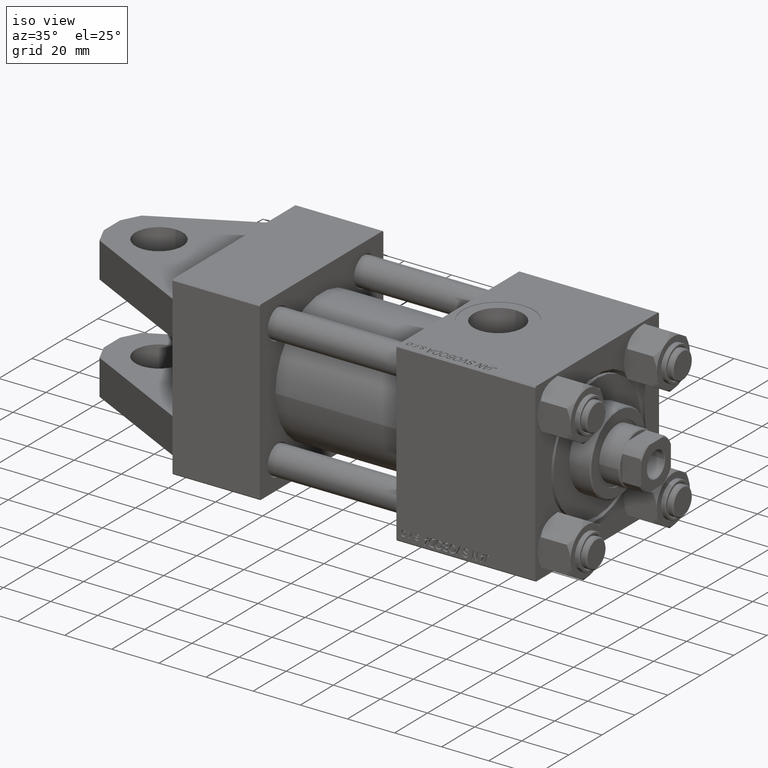
[diagram: clean part render]
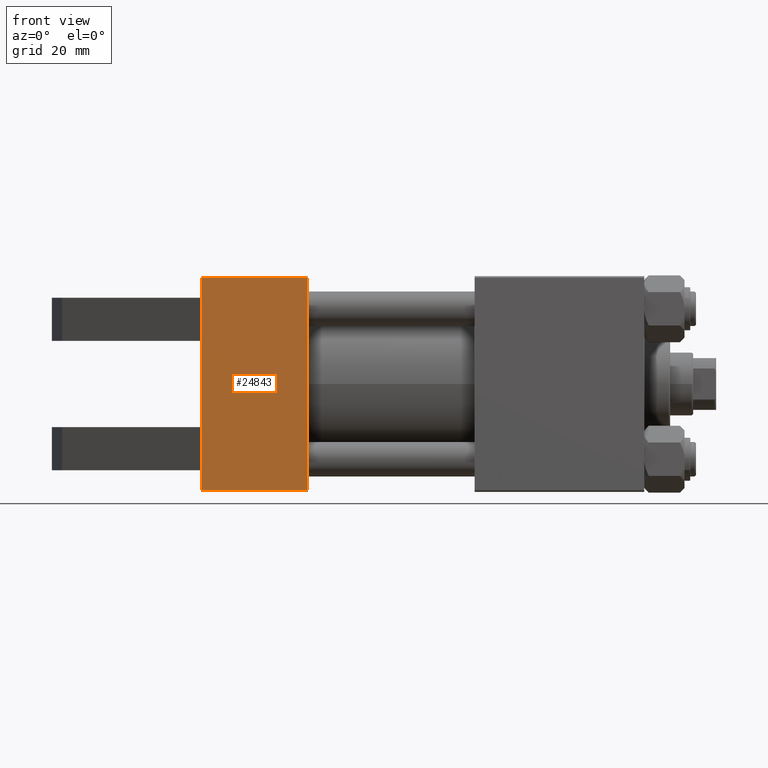
[diagram: tour spotlight — one face highlighted and labeled with its STEP entity id]
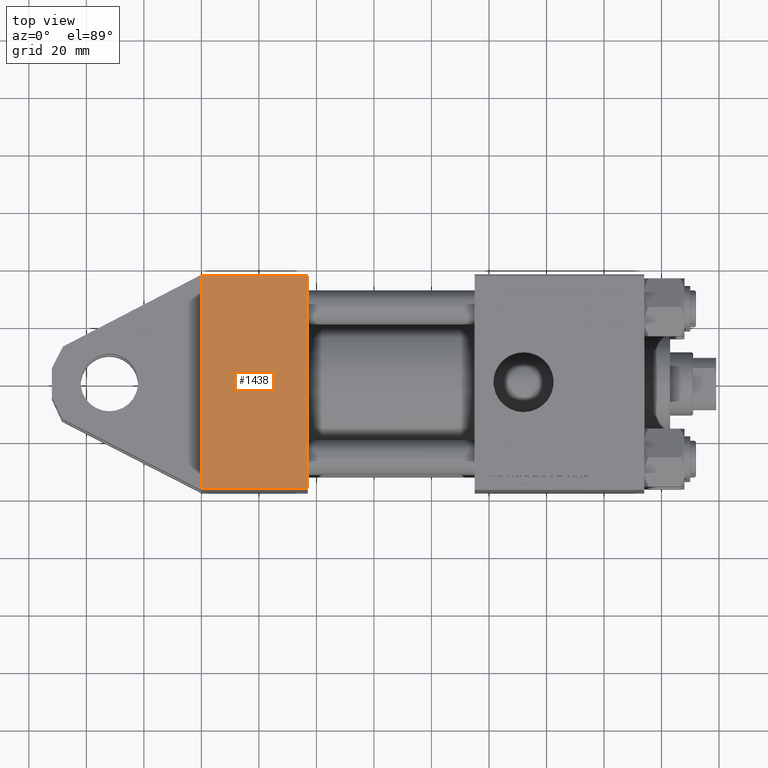
[diagram: tour spotlight — one face highlighted and labeled with its STEP entity id]
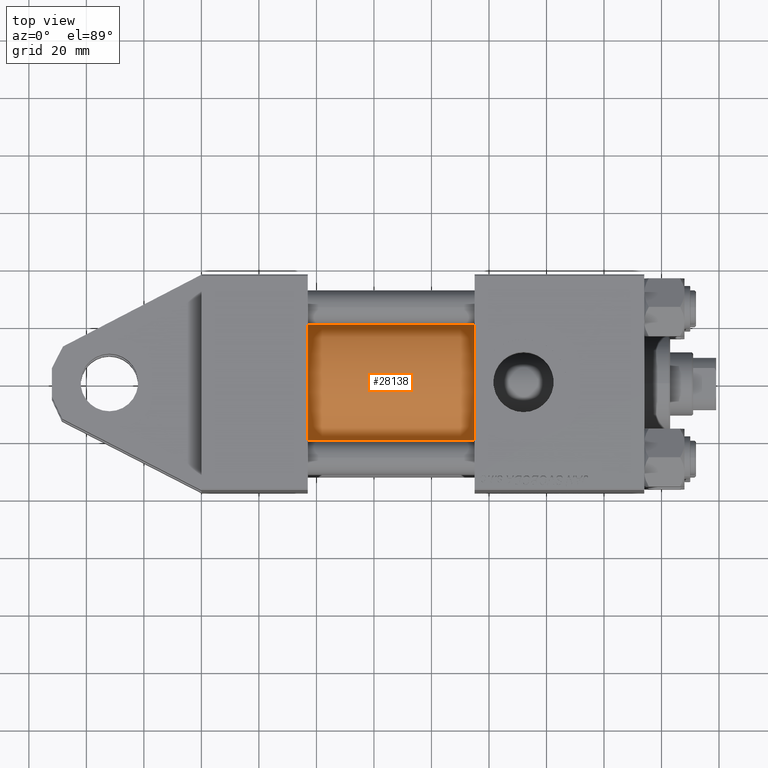
[diagram: tour spotlight — one face highlighted and labeled with its STEP entity id]
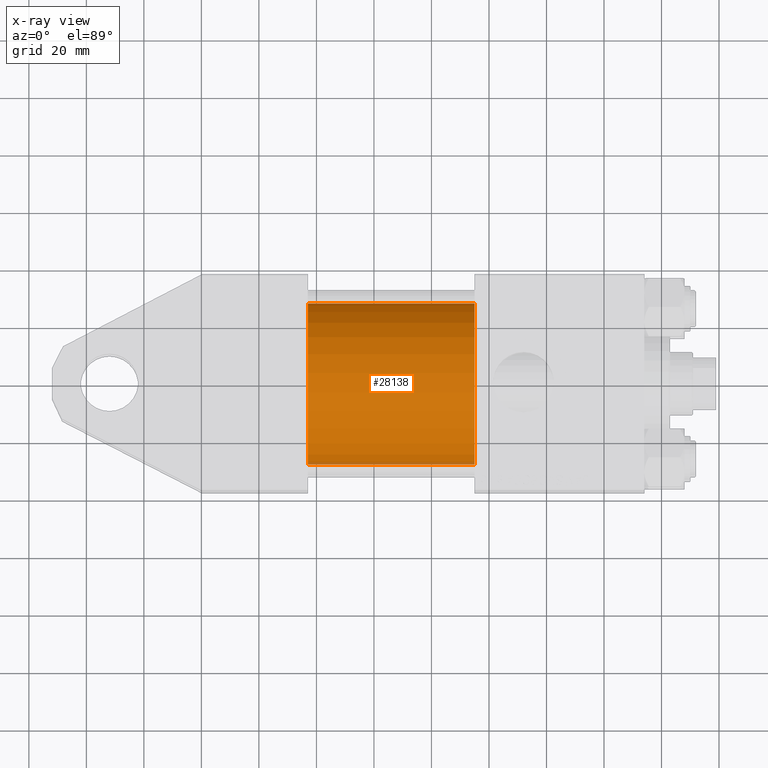
[diagram: x-ray of the same camera — body ghosted, this tour face saturated]
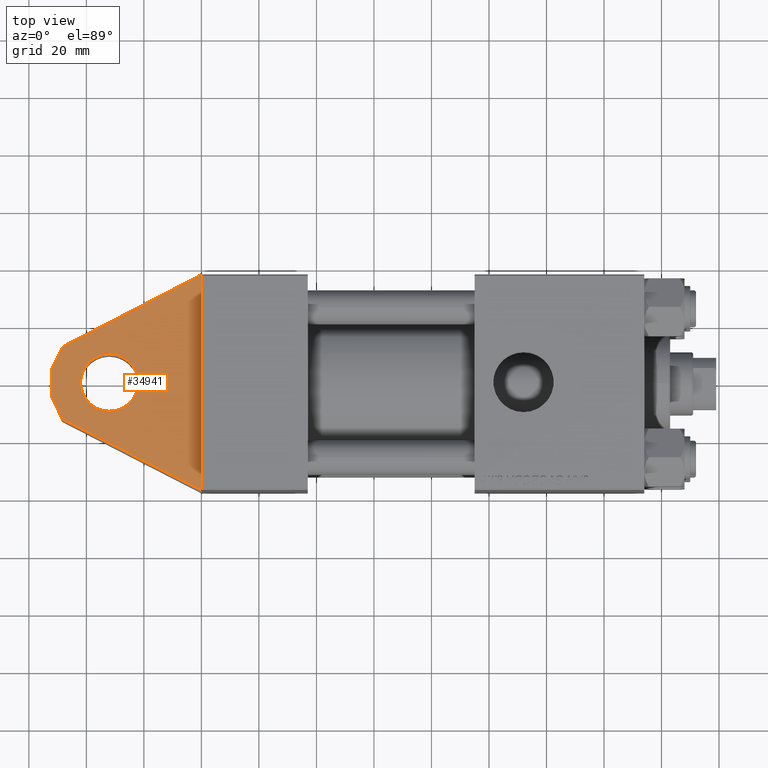
[diagram: tour spotlight — one face highlighted and labeled with its STEP entity id]
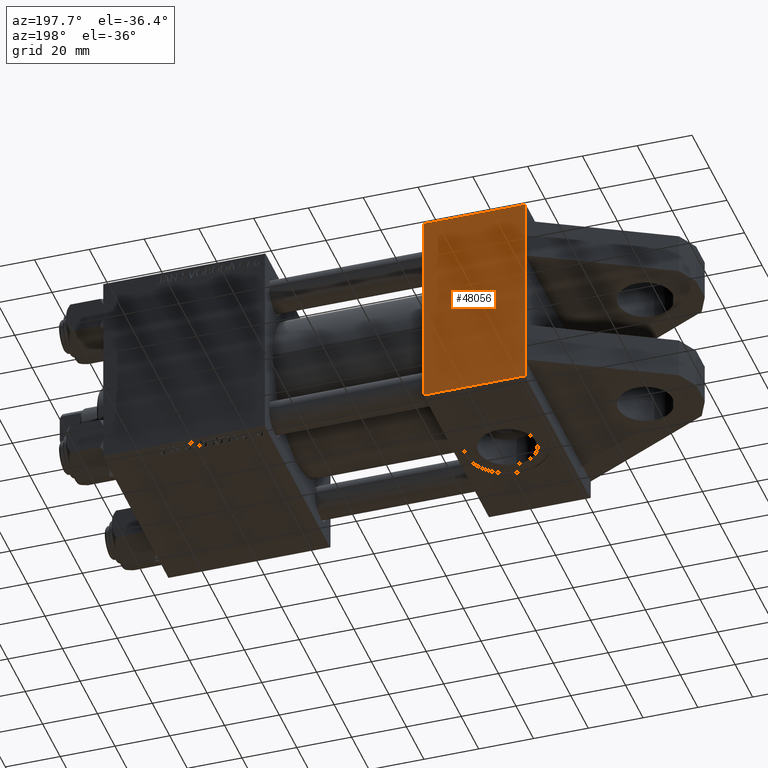
[diagram: tour spotlight — one face highlighted and labeled with its STEP entity id]
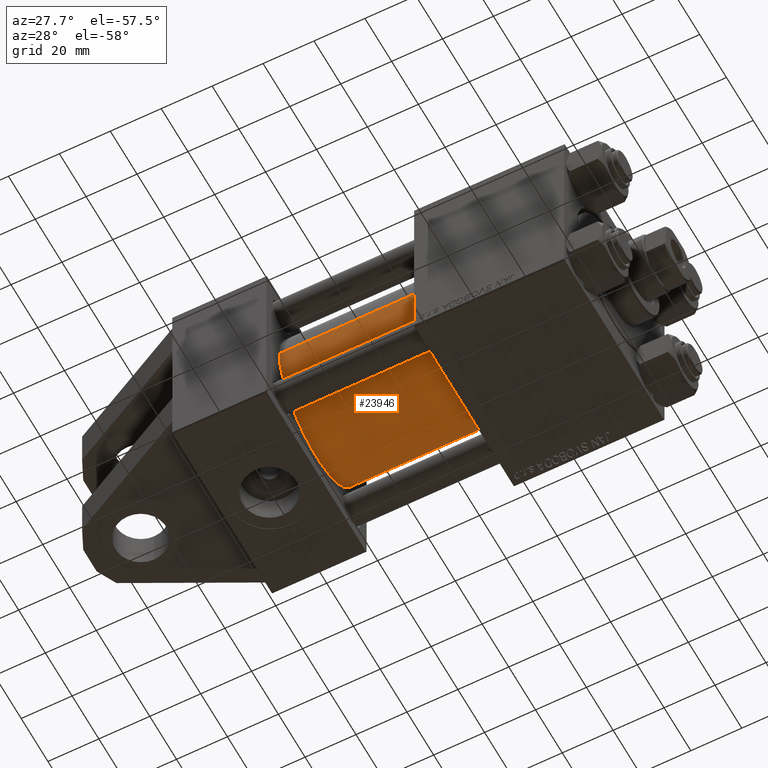
[diagram: tour spotlight — one face highlighted and labeled with its STEP entity id]
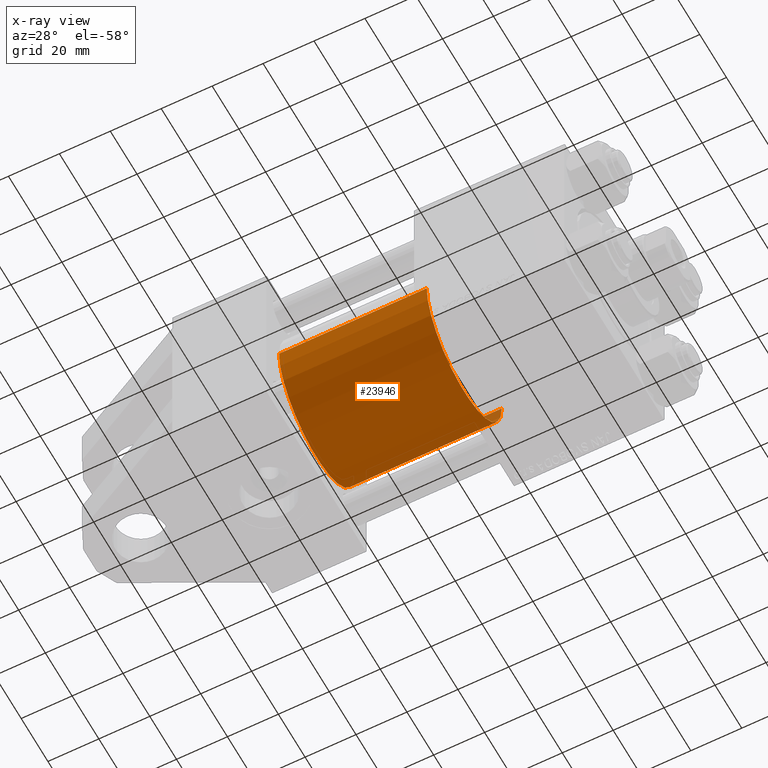
[diagram: x-ray of the same camera — body ghosted, this tour face saturated]
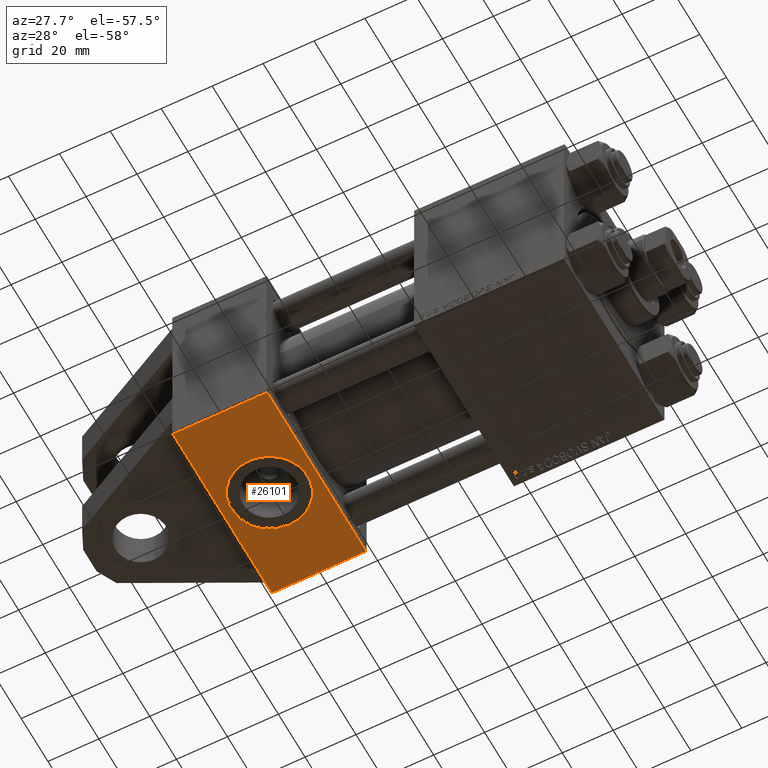
[diagram: tour spotlight — one face highlighted and labeled with its STEP entity id]
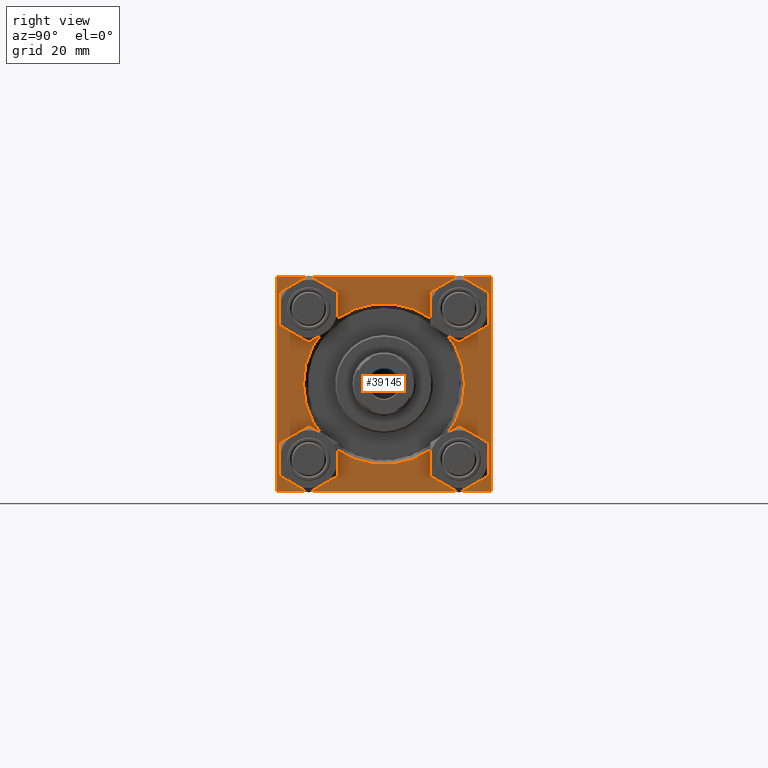
[diagram: tour spotlight — one face highlighted and labeled with its STEP entity id]
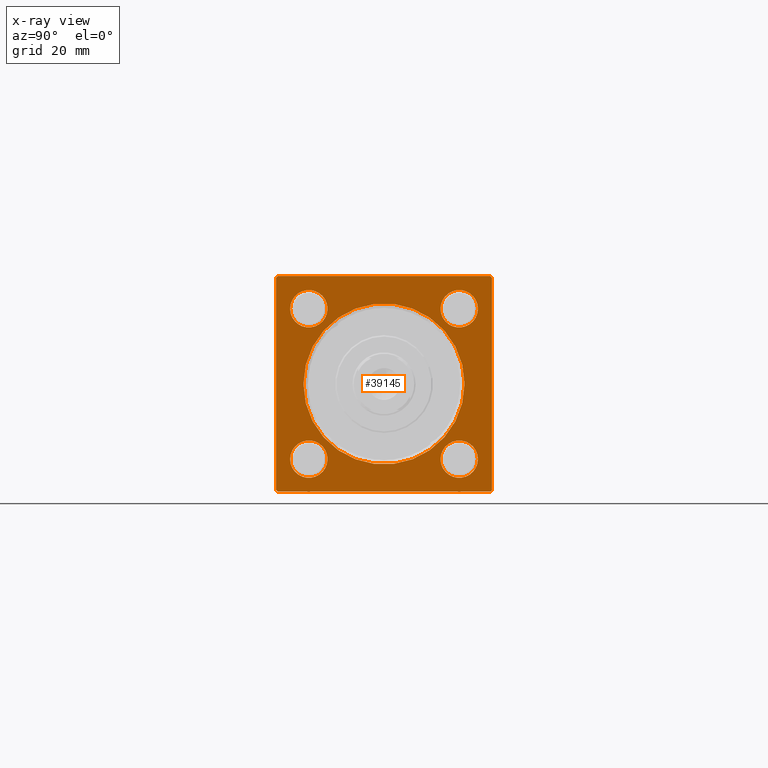
[diagram: x-ray of the same camera — body ghosted, this tour face saturated]
A machine part: a face-by-face anatomy tour. The part has 1129 B-rep faces; the first image is the clean iso view, then the 8 largest visible faces are spotlighted one at a time (largest first), each with its STEP entity span.

Face 1 — front view, entity #24843. In plain terms, the highlighted planar face has unit normal (0, -1, -0).
Definition (entity closure, byte-faithful):
#863 = CARTESIAN_POINT ( 'NONE',  ( 0.000000000000000000, -30.00000000000000000, -37.50000000000000711 ) ) ;
#1143 = CARTESIAN_POINT ( 'NONE',  ( 0.000000000000000000, 37.49999999999999289, -37.50000000000000000 ) ) ;
#1312 = VECTOR ( 'NONE', #40121, 1000.000000000000000 ) ;
#1411 = ORIENTED_EDGE ( 'NONE', *, *, #10355, .F. ) ;
#2431 = CARTESIAN_POINT ( 'NONE',  ( 0.000000000000000000, -15.00000000000000000, -37.50000000000000711 ) ) ;
#4127 = ORIENTED_EDGE ( 'NONE', *, *, #11592, .T. ) ;
#4802 = CARTESIAN_POINT ( 'NONE',  ( 0.000000000000000000, 30.00000000000000000, -37.50000000000000711 ) ) ;
#4807 = ORIENTED_EDGE ( 'NONE', *, *, #30528, .T. ) ;
#5144 = VECTOR ( 'NONE', #26534, 1000.000000000000000 ) ;
#6107 = ORIENTED_EDGE ( 'NONE', *, *, #16172, .F. ) ;
#6682 = CARTESIAN_POINT ( 'NONE',  ( 0.000000000000000000, 37.49999999999999289, -37.50000000000000000 ) ) ;
#6863 = VECTOR ( 'NONE', #34172, 1000.000000000000000 ) ;
#7053 = LINE ( 'NONE', #15320, #6863 ) ;
#7837 = VERTEX_POINT ( 'NONE', #2431 ) ;
#8394 = CARTESIAN_POINT ( 'NONE',  ( 0.000000000000000000, 36.99999999999997868, -37.50000000000000000 ) ) ;
#9418 = DIRECTION ( 'NONE',  ( 0.000000000000000000, -1.000000000000000000, -9.251858538542972814E-17 ) ) ;
#9711 = LINE ( 'NONE', #6682, #1312 ) ;
#10355 = EDGE_CURVE ( 'NONE', #34540, #11801, #43854, .T. ) ;
#11286 = EDGE_CURVE ( 'NONE', #11801, #28522, #33817, .T. ) ;
#11559 = CARTESIAN_POINT ( 'NONE',  ( 37.00000000000000000, 37.49999999999999289, -37.50000000000000000 ) ) ;
#11592 = EDGE_CURVE ( 'NONE', #13942, #7837, #33450, .T. ) ;
#11801 = VERTEX_POINT ( 'NONE', #4802 ) ;
#13942 = VERTEX_POINT ( 'NONE', #863 ) ;
#14622 = EDGE_CURVE ( 'NONE', #28522, #7837, #7053, .T. ) ;
#15092 = DIRECTION ( 'NONE',  ( 0.000000000000000000, -1.000000000000000000, -9.251858538542972814E-17 ) ) ;
#15320 = CARTESIAN_POINT ( 'NONE',  ( 0.000000000000000000, 37.49999999999999289, -37.50000000000000000 ) ) ;
#15424 = EDGE_LOOP ( 'NONE', ( #1411, #24518, #49621, #4807, #6107, #4127, #37955, #20298 ) ) ;
#16147 = CARTESIAN_POINT ( 'NONE',  ( 0.000000000000000000, -37.00000000000002132, -37.50000000000000711 ) ) ;
#16172 = EDGE_CURVE ( 'NONE', #13942, #17626, #9711, .T. ) ;
#17626 = VERTEX_POINT ( 'NONE', #16147 ) ;
#18037 = VERTEX_POINT ( 'NONE', #23052 ) ;
#18089 = CARTESIAN_POINT ( 'NONE',  ( 37.00000000000000000, 36.99999999999997868, -37.50000000000000000 ) ) ;
#19339 = PLANE ( 'NONE',  #43993 ) ;
#20298 = ORIENTED_EDGE ( 'NONE', *, *, #11286, .F. ) ;
#20391 = LINE ( 'NONE', #43271, #41896 ) ;
#21917 = CARTESIAN_POINT ( 'NONE',  ( 37.00000000000000000, -37.00000000000002132, -37.50000000000000711 ) ) ;
#23052 = CARTESIAN_POINT ( 'NONE',  ( 37.00000000000000000, 36.99999999999997868, -37.50000000000000000 ) ) ;
#23596 = CARTESIAN_POINT ( 'NONE',  ( 0.000000000000000000, 15.00000000000000000, -37.50000000000000000 ) ) ;
#24518 = ORIENTED_EDGE ( 'NONE', *, *, #30600, .T. ) ;
#24843 = ADVANCED_FACE ( 'NONE', ( #34921 ), #19339, .T. ) ;
#26131 = DIRECTION ( 'NONE',  ( 0.000000000000000000, 1.000000000000000000, 9.251858538542972814E-17 ) ) ;
#26534 = DIRECTION ( 'NONE',  ( -0.000000000000000000, -1.000000000000000000, -0.000000000000000000 ) ) ;
#27137 = DIRECTION ( 'NONE',  ( 0.000000000000000000, 9.251858538542972814E-17, -1.000000000000000000 ) ) ;
#28522 = VERTEX_POINT ( 'NONE', #23596 ) ;
#29668 = LINE ( 'NONE', #37713, #44507 ) ;
#30373 = VERTEX_POINT ( 'NONE', #21917 ) ;
#30528 = EDGE_CURVE ( 'NONE', #30373, #17626, #20391, .T. ) ;
#30600 = EDGE_CURVE ( 'NONE', #34540, #18037, #40228, .T. ) ;
#33199 = CARTESIAN_POINT ( 'NONE',  ( 0.000000000000000000, -30.00000000000000000, -37.50000000000000711 ) ) ;
#33415 = DIRECTION ( 'NONE',  ( 1.000000000000000000, 0.000000000000000000, 0.000000000000000000 ) ) ;
#33450 = LINE ( 'NONE', #33199, #41256 ) ;
#33817 = LINE ( 'NONE', #49177, #5144 ) ;
#34172 = DIRECTION ( 'NONE',  ( 0.000000000000000000, -1.000000000000000000, -9.251858538542972814E-17 ) ) ;
#34540 = VERTEX_POINT ( 'NONE', #8394 ) ;
#34921 = FACE_OUTER_BOUND ( 'NONE', #15424, .T. ) ;
#37713 = CARTESIAN_POINT ( 'NONE',  ( 37.00000000000000000, 37.49999999999999289, -37.50000000000000000 ) ) ;
#37955 = ORIENTED_EDGE ( 'NONE', *, *, #14622, .F. ) ;
#40121 = DIRECTION ( 'NONE',  ( 0.000000000000000000, -1.000000000000000000, -9.251858538542972814E-17 ) ) ;
#40228 = LINE ( 'NONE', #18089, #49108 ) ;
#40730 = EDGE_CURVE ( 'NONE', #18037, #30373, #29668, .T. ) ;
#40995 = DIRECTION ( 'NONE',  ( -0.000000000000000000, 1.000000000000000000, -0.000000000000000000 ) ) ;
#41256 = VECTOR ( 'NONE', #40995, 1000.000000000000000 ) ;
#41896 = VECTOR ( 'NONE', #42779, 1000.000000000000000 ) ;
#42779 = DIRECTION ( 'NONE',  ( -1.000000000000000000, 0.000000000000000000, 0.000000000000000000 ) ) ;
#43271 = CARTESIAN_POINT ( 'NONE',  ( 0.000000000000000000, -37.00000000000002132, -37.50000000000000711 ) ) ;
#43854 = LINE ( 'NONE', #1143, #49271 ) ;
#43993 = AXIS2_PLACEMENT_3D ( 'NONE', #11559, #27137, #26131 ) ;
#44507 = VECTOR ( 'NONE', #15092, 1000.000000000000000 ) ;
#49108 = VECTOR ( 'NONE', #33415, 1000.000000000000000 ) ;
#49177 = CARTESIAN_POINT ( 'NONE',  ( 0.000000000000000000, 30.00000000000000000, -37.50000000000000711 ) ) ;
#49271 = VECTOR ( 'NONE', #9418, 1000.000000000000000 ) ;
#49621 = ORIENTED_EDGE ( 'NONE', *, *, #40730, .T. ) ;

Face 2 — top view, entity #1438. In plain terms, the highlighted planar face has unit normal (0, 0, -1).
Definition (entity closure, byte-faithful):
#1292 = VERTEX_POINT ( 'NONE', #48486 ) ;
#1438 = ADVANCED_FACE ( 'NONE', ( #36154 ), #24347, .F. ) ;
#4654 = VECTOR ( 'NONE', #45205, 1000.000000000000000 ) ;
#5269 = DIRECTION ( 'NONE',  ( -0.000000000000000000, 1.000000000000000000, 9.251858538542971581E-17 ) ) ;
#5527 = CARTESIAN_POINT ( 'NONE',  ( 37.00000000000000000, -37.50000000000000711, 37.49999999999999289 ) ) ;
#5583 = ORIENTED_EDGE ( 'NONE', *, *, #13267, .T. ) ;
#7891 = LINE ( 'NONE', #45591, #48600 ) ;
#8174 = CARTESIAN_POINT ( 'NONE',  ( 37.00000000000000000, -37.50000000000000000, -37.00000000000003553 ) ) ;
#8354 = ORIENTED_EDGE ( 'NONE', *, *, #26259, .T. ) ;
#10614 = VERTEX_POINT ( 'NONE', #31965 ) ;
#11209 = VERTEX_POINT ( 'NONE', #16770 ) ;
#13264 = DIRECTION ( 'NONE',  ( 0.000000000000000000, 9.251858538542971581E-17, -1.000000000000000000 ) ) ;
#13267 = EDGE_CURVE ( 'NONE', #1292, #14230, #7891, .T. ) ;
#14037 = LINE ( 'NONE', #41439, #4654 ) ;
#14230 = VERTEX_POINT ( 'NONE', #48327 ) ;
#16464 = VECTOR ( 'NONE', #13264, 1000.000000000000000 ) ;
#16770 = CARTESIAN_POINT ( 'NONE',  ( 37.00000000000000000, -37.50000000000000711, 36.99999999999999289 ) ) ;
#20587 = DIRECTION ( 'NONE',  ( 0.000000000000000000, -9.251858538542971581E-17, 1.000000000000000000 ) ) ;
#20777 = EDGE_CURVE ( 'NONE', #11209, #1292, #14037, .T. ) ;
#21543 = CARTESIAN_POINT ( 'NONE',  ( 37.00000000000000000, -37.50000000000000711, 37.49999999999999289 ) ) ;
#21549 = VECTOR ( 'NONE', #43351, 1000.000000000000000 ) ;
#24347 = PLANE ( 'NONE',  #35482 ) ;
#26259 = EDGE_CURVE ( 'NONE', #14230, #10614, #28009, .T. ) ;
#28009 = LINE ( 'NONE', #8174, #21549 ) ;
#28034 = ORIENTED_EDGE ( 'NONE', *, *, #20777, .T. ) ;
#31965 = CARTESIAN_POINT ( 'NONE',  ( 37.00000000000000000, -37.50000000000000000, -37.00000000000003553 ) ) ;
#35482 = AXIS2_PLACEMENT_3D ( 'NONE', #5527, #5269, #20587 ) ;
#36154 = FACE_OUTER_BOUND ( 'NONE', #41789, .T. ) ;
#40147 = LINE ( 'NONE', #21543, #16464 ) ;
#41439 = CARTESIAN_POINT ( 'NONE',  ( 37.00000000000000000, -37.50000000000000711, 36.99999999999999289 ) ) ;
#41789 = EDGE_LOOP ( 'NONE', ( #5583, #8354, #45721, #28034 ) ) ;
#41815 = DIRECTION ( 'NONE',  ( 0.000000000000000000, 9.251858538542971581E-17, -1.000000000000000000 ) ) ;
#43351 = DIRECTION ( 'NONE',  ( 1.000000000000000000, 0.000000000000000000, 0.000000000000000000 ) ) ;
#45205 = DIRECTION ( 'NONE',  ( -1.000000000000000000, 0.000000000000000000, 0.000000000000000000 ) ) ;
#45591 = CARTESIAN_POINT ( 'NONE',  ( 0.000000000000000000, -37.50000000000000711, 37.49999999999999289 ) ) ;
#45721 = ORIENTED_EDGE ( 'NONE', *, *, #46490, .F. ) ;
#46490 = EDGE_CURVE ( 'NONE', #11209, #10614, #40147, .T. ) ;
#48327 = CARTESIAN_POINT ( 'NONE',  ( 0.000000000000000000, -37.50000000000000000, -37.00000000000003553 ) ) ;
#48486 = CARTESIAN_POINT ( 'NONE',  ( 0.000000000000000000, -37.50000000000000711, 36.99999999999999289 ) ) ;
#48600 = VECTOR ( 'NONE', #41815, 1000.000000000000000 ) ;

Face 3 — top view, entity #28138. An x-ray twin of the same camera follows (body ghosted, this face saturated) — the face is partly hidden behind the body. In plain terms, the highlighted cylindrical surface (partial cylindrical patch) has radius 28 mm, axis along (-1, -0, 0).
Definition (entity closure, byte-faithful):
#240 = DIRECTION ( 'NONE',  ( -1.000000000000000000, -0.000000000000000000, -0.000000000000000000 ) ) ;
#364 = AXIS2_PLACEMENT_3D ( 'NONE', #46187, #8901, #11757 ) ;
#861 = CIRCLE ( 'NONE', #26486, 28.00000000000000000 ) ;
#3767 = LINE ( 'NONE', #23827, #11391 ) ;
#4084 = CARTESIAN_POINT ( 'NONE',  ( 37.00000000000000000, -3.469446951953614189E-15, 28.00000000000000000 ) ) ;
#6607 = CARTESIAN_POINT ( 'NONE',  ( 95.00000000000000000, -3.469446951953614189E-15, 0.000000000000000000 ) ) ;
#7914 = VERTEX_POINT ( 'NONE', #29039 ) ;
#8901 = DIRECTION ( 'NONE',  ( 1.000000000000000000, -0.000000000000000000, 0.000000000000000000 ) ) ;
#11391 = VECTOR ( 'NONE', #240, 1000.000000000000000 ) ;
#11757 = DIRECTION ( 'NONE',  ( 0.000000000000000000, 0.000000000000000000, 1.000000000000000000 ) ) ;
#14010 = LINE ( 'NONE', #22547, #16367 ) ;
#14379 = FACE_OUTER_BOUND ( 'NONE', #36571, .T. ) ;
#15872 = ORIENTED_EDGE ( 'NONE', *, *, #27376, .F. ) ;
#16367 = VECTOR ( 'NONE', #48963, 1000.000000000000000 ) ;
#16786 = ORIENTED_EDGE ( 'NONE', *, *, #39658, .T. ) ;
#21057 = CARTESIAN_POINT ( 'NONE',  ( 95.00000000000000000, -4.043591434102586818E-17, -28.00000000000000000 ) ) ;
#22547 = CARTESIAN_POINT ( 'NONE',  ( 95.00000000000000000, -3.469446951953614189E-15, 28.00000000000000000 ) ) ;
#22763 = VERTEX_POINT ( 'NONE', #4084 ) ;
#23262 = VERTEX_POINT ( 'NONE', #21057 ) ;
#23827 = CARTESIAN_POINT ( 'NONE',  ( 95.00000000000000000, -4.043591434102586818E-17, -28.00000000000000000 ) ) ;
#24714 = DIRECTION ( 'NONE',  ( 0.000000000000000000, 0.000000000000000000, 1.000000000000000000 ) ) ;
#26486 = AXIS2_PLACEMENT_3D ( 'NONE', #35036, #31996, #47346 ) ;
#26936 = ORIENTED_EDGE ( 'NONE', *, *, #39487, .T. ) ;
#27376 = EDGE_CURVE ( 'NONE', #7914, #23262, #861, .T. ) ;
#28138 = ADVANCED_FACE ( 'NONE', ( #14379 ), #48592, .T. ) ;
#29039 = CARTESIAN_POINT ( 'NONE',  ( 95.00000000000000000, -3.469446951953614189E-15, 28.00000000000000000 ) ) ;
#31996 = DIRECTION ( 'NONE',  ( 1.000000000000000000, 0.000000000000000000, 0.000000000000000000 ) ) ;
#33577 = EDGE_CURVE ( 'NONE', #23262, #48293, #3767, .T. ) ;
#35036 = CARTESIAN_POINT ( 'NONE',  ( 95.00000000000000000, -3.469446951953614189E-15, 0.000000000000000000 ) ) ;
#35627 = CIRCLE ( 'NONE', #364, 28.00000000000000000 ) ;
#36465 = CARTESIAN_POINT ( 'NONE',  ( 37.00000000000000000, -4.043591434102586818E-17, -28.00000000000000000 ) ) ;
#36571 = EDGE_LOOP ( 'NONE', ( #44699, #15872, #26936, #16786 ) ) ;
#39487 = EDGE_CURVE ( 'NONE', #7914, #22763, #14010, .T. ) ;
#39658 = EDGE_CURVE ( 'NONE', #22763, #48293, #35627, .T. ) ;
#39984 = AXIS2_PLACEMENT_3D ( 'NONE', #6607, #40539, #24714 ) ;
#40539 = DIRECTION ( 'NONE',  ( -1.000000000000000000, -0.000000000000000000, -0.000000000000000000 ) ) ;
#44699 = ORIENTED_EDGE ( 'NONE', *, *, #33577, .F. ) ;
#46187 = CARTESIAN_POINT ( 'NONE',  ( 37.00000000000000000, -3.469446951953614189E-15, 0.000000000000000000 ) ) ;
#47346 = DIRECTION ( 'NONE',  ( 0.000000000000000000, 0.000000000000000000, -1.000000000000000000 ) ) ;
#48293 = VERTEX_POINT ( 'NONE', #36465 ) ;
#48592 = CYLINDRICAL_SURFACE ( 'NONE', #39984, 28.00000000000000000 ) ;
#48963 = DIRECTION ( 'NONE',  ( -1.000000000000000000, -0.000000000000000000, -0.000000000000000000 ) ) ;

Face 4 — top view, entity #34941. In plain terms, the highlighted planar face has unit normal (0, 0, 1).
Definition (entity closure, byte-faithful):
#863 = CARTESIAN_POINT ( 'NONE',  ( 0.000000000000000000, -30.00000000000000000, -37.50000000000000711 ) ) ;
#960 = LINE ( 'NONE', #31595, #40647 ) ;
#1131 = VECTOR ( 'NONE', #27397, 1000.000000000000000 ) ;
#2218 = FACE_BOUND ( 'NONE', #37603, .T. ) ;
#2311 = VERTEX_POINT ( 'NONE', #13049 ) ;
#3846 = CARTESIAN_POINT ( 'NONE',  ( -48.15077811301358679, -30.00000000000000000, 12.49989272354909353 ) ) ;
#5826 = EDGE_LOOP ( 'NONE', ( #38721, #37821, #6899, #44652, #10284, #33573 ) ) ;
#6836 = CARTESIAN_POINT ( 'NONE',  ( -32.00000000000000000, -30.00000000000000000, -6.938893903907228378E-15 ) ) ;
#6839 = DIRECTION ( 'NONE',  ( 0.4566099510066921607, 0.000000000000000000, 0.8896669897448518105 ) ) ;
#6899 = ORIENTED_EDGE ( 'NONE', *, *, #8228, .F. ) ;
#7936 = VECTOR ( 'NONE', #6839, 1000.000000000000000 ) ;
#8228 = EDGE_CURVE ( 'NONE', #13514, #29162, #48864, .T. ) ;
#10284 = ORIENTED_EDGE ( 'NONE', *, *, #37841, .F. ) ;
#10777 = EDGE_CURVE ( 'NONE', #13942, #13514, #39700, .T. ) ;
#13049 = CARTESIAN_POINT ( 'NONE',  ( -32.00000000000000000, -30.00000000000000000, -10.00000000000000711 ) ) ;
#13458 = DIRECTION ( 'NONE',  ( 0.000000000000000000, 0.000000000000000000, -1.000000000000000000 ) ) ;
#13514 = VERTEX_POINT ( 'NONE', #39898 ) ;
#13942 = VERTEX_POINT ( 'NONE', #863 ) ;
#15117 = CARTESIAN_POINT ( 'NONE',  ( -52.00000000000000711, -30.00000000000000000, 4.999999999999992895 ) ) ;
#15797 = DIRECTION ( 'NONE',  ( 0.000000000000000000, 0.000000000000000000, 1.000000000000000000 ) ) ;
#16468 = AXIS2_PLACEMENT_3D ( 'NONE', #6836, #41258, #37487 ) ;
#16532 = DIRECTION ( 'NONE',  ( 0.000000000000000000, 0.000000000000000000, 1.000000000000000000 ) ) ;
#17136 = EDGE_CURVE ( 'NONE', #29162, #39643, #960, .T. ) ;
#17255 = CIRCLE ( 'NONE', #22056, 10.00000000000000000 ) ;
#19316 = DIRECTION ( 'NONE',  ( -0.000000000000000000, 1.000000000000000000, -0.000000000000000000 ) ) ;
#21905 = CARTESIAN_POINT ( 'NONE',  ( -48.15077811301358679, -30.00000000000000000, 12.49989272354909353 ) ) ;
#22056 = AXIS2_PLACEMENT_3D ( 'NONE', #31372, #19316, #15797 ) ;
#22195 = CARTESIAN_POINT ( 'NONE',  ( -52.00000000000000711, -30.00000000000000000, -5.000000000000007105 ) ) ;
#26633 = EDGE_CURVE ( 'NONE', #39643, #46714, #45035, .T. ) ;
#27397 = DIRECTION ( 'NONE',  ( -0.8896669897448514774, 0.000000000000000000, 0.4566099510066927158 ) ) ;
#27646 = CARTESIAN_POINT ( 'NONE',  ( -48.43732805352595960, -30.00000000000000000, -12.64017464471899110 ) ) ;
#28444 = VECTOR ( 'NONE', #48120, 1000.000000000000114 ) ;
#28589 = FACE_OUTER_BOUND ( 'NONE', #5826, .T. ) ;
#28649 = CARTESIAN_POINT ( 'NONE',  ( -52.00000000000000711, -30.00000000000000000, -5.000000000000007105 ) ) ;
#29162 = VERTEX_POINT ( 'NONE', #28649 ) ;
#31372 = CARTESIAN_POINT ( 'NONE',  ( -32.00000000000000000, -30.00000000000000000, -6.938893903907228378E-15 ) ) ;
#31489 = CARTESIAN_POINT ( 'NONE',  ( -32.00000000000000000, -30.00000000000000000, 9.999999999999992895 ) ) ;
#31595 = CARTESIAN_POINT ( 'NONE',  ( -52.00000000000000711, -30.00000000000000000, -5.000000000000007105 ) ) ;
#32606 = CARTESIAN_POINT ( 'NONE',  ( 0.000000000000000000, -30.00000000000000000, 0.000000000000000000 ) ) ;
#32848 = DIRECTION ( 'NONE',  ( 0.000000000000000000, -1.000000000000000000, 0.000000000000000000 ) ) ;
#33030 = CARTESIAN_POINT ( 'NONE',  ( 0.000000000000000000, -30.00000000000000000, 37.49999999999999289 ) ) ;
#33573 = ORIENTED_EDGE ( 'NONE', *, *, #44156, .F. ) ;
#34869 = ORIENTED_EDGE ( 'NONE', *, *, #42461, .T. ) ;
#34941 = ADVANCED_FACE ( 'NONE', ( #2218, #28589 ), #43434, .T. ) ;
#35332 = CARTESIAN_POINT ( 'NONE',  ( 0.000000000000000000, -30.00000000000001421, 37.49999999999999289 ) ) ;
#37487 = DIRECTION ( 'NONE',  ( 0.000000000000000000, 0.000000000000000000, 1.000000000000000000 ) ) ;
#37603 = EDGE_LOOP ( 'NONE', ( #34869, #38997 ) ) ;
#37821 = ORIENTED_EDGE ( 'NONE', *, *, #17136, .F. ) ;
#37841 = EDGE_CURVE ( 'NONE', #43433, #13942, #43881, .T. ) ;
#38151 = CIRCLE ( 'NONE', #16468, 10.00000000000000000 ) ;
#38185 = VECTOR ( 'NONE', #46548, 1000.000000000000114 ) ;
#38721 = ORIENTED_EDGE ( 'NONE', *, *, #26633, .F. ) ;
#38997 = ORIENTED_EDGE ( 'NONE', *, *, #46424, .T. ) ;
#39643 = VERTEX_POINT ( 'NONE', #43585 ) ;
#39700 = LINE ( 'NONE', #27646, #1131 ) ;
#39898 = CARTESIAN_POINT ( 'NONE',  ( -48.43732805352595960, -30.00000000000000000, -12.64017464471899110 ) ) ;
#40647 = VECTOR ( 'NONE', #42926, 1000.000000000000000 ) ;
#41258 = DIRECTION ( 'NONE',  ( -0.000000000000000000, 1.000000000000000000, -0.000000000000000000 ) ) ;
#42461 = EDGE_CURVE ( 'NONE', #45962, #2311, #38151, .T. ) ;
#42926 = DIRECTION ( 'NONE',  ( 0.000000000000000000, 0.000000000000000000, 1.000000000000000000 ) ) ;
#43433 = VERTEX_POINT ( 'NONE', #35332 ) ;
#43434 = PLANE ( 'NONE',  #46732 ) ;
#43585 = CARTESIAN_POINT ( 'NONE',  ( -52.00000000000000711, -30.00000000000000000, 4.999999999999992895 ) ) ;
#43881 = LINE ( 'NONE', #33030, #48452 ) ;
#44156 = EDGE_CURVE ( 'NONE', #46714, #43433, #46300, .T. ) ;
#44652 = ORIENTED_EDGE ( 'NONE', *, *, #10777, .F. ) ;
#45035 = LINE ( 'NONE', #15117, #7936 ) ;
#45962 = VERTEX_POINT ( 'NONE', #31489 ) ;
#46300 = LINE ( 'NONE', #3846, #38185 ) ;
#46424 = EDGE_CURVE ( 'NONE', #2311, #45962, #17255, .T. ) ;
#46548 = DIRECTION ( 'NONE',  ( 0.8875055616531780656, 0.000000000000000000, 0.4607970030660757943 ) ) ;
#46714 = VERTEX_POINT ( 'NONE', #21905 ) ;
#46732 = AXIS2_PLACEMENT_3D ( 'NONE', #32606, #32848, #16532 ) ;
#48120 = DIRECTION ( 'NONE',  ( -0.4226182617406929465, 0.000000000000000000, 0.9063077870366529343 ) ) ;
#48452 = VECTOR ( 'NONE', #13458, 1000.000000000000000 ) ;
#48864 = LINE ( 'NONE', #22195, #28444 ) ;

Face 5 — auxiliary view, entity #48056. In plain terms, the highlighted planar face has unit normal (0, -1, -0).
Definition (entity closure, byte-faithful):
#742 = VECTOR ( 'NONE', #17653, 1000.000000000000000 ) ;
#1481 = EDGE_CURVE ( 'NONE', #43433, #31553, #28357, .T. ) ;
#1553 = VERTEX_POINT ( 'NONE', #31771 ) ;
#2824 = VECTOR ( 'NONE', #34579, 1000.000000000000000 ) ;
#2863 = DIRECTION ( 'NONE',  ( -0.000000000000000000, -1.000000000000000000, -0.000000000000000000 ) ) ;
#5060 = CARTESIAN_POINT ( 'NONE',  ( 37.00000000000000000, 36.99999999999999289, 37.50000000000000000 ) ) ;
#5277 = ORIENTED_EDGE ( 'NONE', *, *, #13771, .T. ) ;
#5431 = LINE ( 'NONE', #28030, #47761 ) ;
#8379 = LINE ( 'NONE', #23699, #41333 ) ;
#10235 = CARTESIAN_POINT ( 'NONE',  ( 0.000000000000000000, 36.99999999999999289, 37.50000000000000000 ) ) ;
#12305 = DIRECTION ( 'NONE',  ( -0.000000000000000000, 1.000000000000000000, -0.000000000000000000 ) ) ;
#12918 = CARTESIAN_POINT ( 'NONE',  ( 0.000000000000000000, 36.99999999999999289, 37.50000000000000000 ) ) ;
#13070 = VECTOR ( 'NONE', #36772, 1000.000000000000000 ) ;
#13260 = EDGE_CURVE ( 'NONE', #43433, #39370, #8379, .T. ) ;
#13771 = EDGE_CURVE ( 'NONE', #48790, #31553, #5431, .T. ) ;
#14447 = ORIENTED_EDGE ( 'NONE', *, *, #36580, .F. ) ;
#15815 = VECTOR ( 'NONE', #43842, 1000.000000000000000 ) ;
#17206 = ORIENTED_EDGE ( 'NONE', *, *, #42111, .T. ) ;
#17209 = DIRECTION ( 'NONE',  ( 0.000000000000000000, -1.000000000000000000, -9.251858538542971581E-17 ) ) ;
#17291 = AXIS2_PLACEMENT_3D ( 'NONE', #22683, #41550, #37016 ) ;
#17653 = DIRECTION ( 'NONE',  ( 0.000000000000000000, -1.000000000000000000, -9.251858538542971581E-17 ) ) ;
#18534 = EDGE_CURVE ( 'NONE', #29930, #37468, #37013, .T. ) ;
#18657 = EDGE_CURVE ( 'NONE', #25909, #48790, #37770, .T. ) ;
#21446 = LINE ( 'NONE', #44816, #13070 ) ;
#21800 = VECTOR ( 'NONE', #12305, 1000.000000000000000 ) ;
#22577 = EDGE_CURVE ( 'NONE', #37468, #25909, #44554, .T. ) ;
#22683 = CARTESIAN_POINT ( 'NONE',  ( 37.00000000000000000, 37.49999999999999289, 37.50000000000000000 ) ) ;
#23589 = ORIENTED_EDGE ( 'NONE', *, *, #13260, .T. ) ;
#23699 = CARTESIAN_POINT ( 'NONE',  ( 0.000000000000000000, 37.49999999999999289, 37.50000000000000000 ) ) ;
#25909 = VERTEX_POINT ( 'NONE', #33368 ) ;
#27029 = CARTESIAN_POINT ( 'NONE',  ( 0.000000000000000000, -15.00000000000000000, 37.49999999999999289 ) ) ;
#28030 = CARTESIAN_POINT ( 'NONE',  ( 0.000000000000000000, 37.49999999999999289, 37.50000000000000000 ) ) ;
#28051 = ORIENTED_EDGE ( 'NONE', *, *, #18657, .T. ) ;
#28357 = LINE ( 'NONE', #43962, #21800 ) ;
#29930 = VERTEX_POINT ( 'NONE', #5060 ) ;
#30436 = ORIENTED_EDGE ( 'NONE', *, *, #18534, .T. ) ;
#31306 = LINE ( 'NONE', #46645, #2824 ) ;
#31553 = VERTEX_POINT ( 'NONE', #27029 ) ;
#31771 = CARTESIAN_POINT ( 'NONE',  ( 37.00000000000000000, -37.00000000000000711, 37.49999999999999289 ) ) ;
#32373 = CARTESIAN_POINT ( 'NONE',  ( 0.000000000000000000, -37.00000000000000711, 37.49999999999999289 ) ) ;
#33246 = FACE_OUTER_BOUND ( 'NONE', #41291, .T. ) ;
#33368 = CARTESIAN_POINT ( 'NONE',  ( 0.000000000000000000, 30.00000000000000000, 37.50000000000000000 ) ) ;
#33491 = CARTESIAN_POINT ( 'NONE',  ( 0.000000000000000000, 30.00000000000000000, 37.49999999999999289 ) ) ;
#34579 = DIRECTION ( 'NONE',  ( 1.000000000000000000, 0.000000000000000000, 0.000000000000000000 ) ) ;
#35261 = DIRECTION ( 'NONE',  ( 0.000000000000000000, -1.000000000000000000, -9.251858538542971581E-17 ) ) ;
#35332 = CARTESIAN_POINT ( 'NONE',  ( 0.000000000000000000, -30.00000000000001421, 37.49999999999999289 ) ) ;
#36580 = EDGE_CURVE ( 'NONE', #29930, #1553, #21446, .T. ) ;
#36772 = DIRECTION ( 'NONE',  ( 0.000000000000000000, -1.000000000000000000, -9.251858538542971581E-17 ) ) ;
#37013 = LINE ( 'NONE', #12918, #15815 ) ;
#37016 = DIRECTION ( 'NONE',  ( 0.000000000000000000, 1.000000000000000000, 9.251858538542971581E-17 ) ) ;
#37468 = VERTEX_POINT ( 'NONE', #10235 ) ;
#37654 = ORIENTED_EDGE ( 'NONE', *, *, #1481, .F. ) ;
#37770 = LINE ( 'NONE', #33491, #40682 ) ;
#39370 = VERTEX_POINT ( 'NONE', #32373 ) ;
#40037 = CARTESIAN_POINT ( 'NONE',  ( 0.000000000000000000, 37.49999999999999289, 37.50000000000000000 ) ) ;
#40682 = VECTOR ( 'NONE', #2863, 1000.000000000000000 ) ;
#41291 = EDGE_LOOP ( 'NONE', ( #44775, #28051, #5277, #37654, #23589, #17206, #14447, #30436 ) ) ;
#41333 = VECTOR ( 'NONE', #35261, 1000.000000000000000 ) ;
#41550 = DIRECTION ( 'NONE',  ( 0.000000000000000000, 9.251858538542971581E-17, -1.000000000000000000 ) ) ;
#42111 = EDGE_CURVE ( 'NONE', #39370, #1553, #31306, .T. ) ;
#43433 = VERTEX_POINT ( 'NONE', #35332 ) ;
#43842 = DIRECTION ( 'NONE',  ( -1.000000000000000000, 0.000000000000000000, 0.000000000000000000 ) ) ;
#43962 = CARTESIAN_POINT ( 'NONE',  ( 0.000000000000000000, -30.00000000000000000, 37.49999999999999289 ) ) ;
#44554 = LINE ( 'NONE', #40037, #742 ) ;
#44775 = ORIENTED_EDGE ( 'NONE', *, *, #22577, .T. ) ;
#44816 = CARTESIAN_POINT ( 'NONE',  ( 37.00000000000000000, 37.49999999999999289, 37.50000000000000000 ) ) ;
#45816 = PLANE ( 'NONE',  #17291 ) ;
#46645 = CARTESIAN_POINT ( 'NONE',  ( 37.00000000000000000, -37.00000000000000711, 37.49999999999999289 ) ) ;
#47370 = CARTESIAN_POINT ( 'NONE',  ( 0.000000000000000000, 15.00000000000000000, 37.50000000000000000 ) ) ;
#47761 = VECTOR ( 'NONE', #17209, 1000.000000000000000 ) ;
#48056 = ADVANCED_FACE ( 'NONE', ( #33246 ), #45816, .F. ) ;
#48790 = VERTEX_POINT ( 'NONE', #47370 ) ;

Face 6 — auxiliary view, entity #23946. An x-ray twin of the same camera follows (body ghosted, this face saturated) — the face is partly hidden behind the body. In plain terms, the highlighted cylindrical surface (partial cylindrical patch) has radius 28 mm, axis along (-1, -0, 0).
Definition (entity closure, byte-faithful):
#240 = DIRECTION ( 'NONE',  ( -1.000000000000000000, -0.000000000000000000, -0.000000000000000000 ) ) ;
#397 = CIRCLE ( 'NONE', #24430, 28.00000000000000000 ) ;
#2325 = ORIENTED_EDGE ( 'NONE', *, *, #39487, .F. ) ;
#3767 = LINE ( 'NONE', #23827, #11391 ) ;
#4084 = CARTESIAN_POINT ( 'NONE',  ( 37.00000000000000000, -3.469446951953614189E-15, 28.00000000000000000 ) ) ;
#4777 = ORIENTED_EDGE ( 'NONE', *, *, #8184, .T. ) ;
#6883 = CARTESIAN_POINT ( 'NONE',  ( 37.00000000000000000, -3.469446951953614189E-15, 0.000000000000000000 ) ) ;
#7177 = CARTESIAN_POINT ( 'NONE',  ( 95.00000000000000000, -3.469446951953614189E-15, 0.000000000000000000 ) ) ;
#7914 = VERTEX_POINT ( 'NONE', #29039 ) ;
#8184 = EDGE_CURVE ( 'NONE', #48293, #22763, #397, .T. ) ;
#8799 = ORIENTED_EDGE ( 'NONE', *, *, #24608, .F. ) ;
#10155 = DIRECTION ( 'NONE',  ( 0.000000000000000000, 0.000000000000000000, 1.000000000000000000 ) ) ;
#11391 = VECTOR ( 'NONE', #240, 1000.000000000000000 ) ;
#13665 = DIRECTION ( 'NONE',  ( 1.000000000000000000, -0.000000000000000000, 0.000000000000000000 ) ) ;
#14010 = LINE ( 'NONE', #22547, #16367 ) ;
#16367 = VECTOR ( 'NONE', #48963, 1000.000000000000000 ) ;
#19221 = DIRECTION ( 'NONE',  ( 0.000000000000000000, 0.000000000000000000, 1.000000000000000000 ) ) ;
#20706 = AXIS2_PLACEMENT_3D ( 'NONE', #7177, #28345, #19221 ) ;
#21057 = CARTESIAN_POINT ( 'NONE',  ( 95.00000000000000000, -4.043591434102586818E-17, -28.00000000000000000 ) ) ;
#22547 = CARTESIAN_POINT ( 'NONE',  ( 95.00000000000000000, -3.469446951953614189E-15, 28.00000000000000000 ) ) ;
#22763 = VERTEX_POINT ( 'NONE', #4084 ) ;
#23262 = VERTEX_POINT ( 'NONE', #21057 ) ;
#23827 = CARTESIAN_POINT ( 'NONE',  ( 95.00000000000000000, -4.043591434102586818E-17, -28.00000000000000000 ) ) ;
#23946 = ADVANCED_FACE ( 'NONE', ( #37064 ), #26257, .T. ) ;
#24430 = AXIS2_PLACEMENT_3D ( 'NONE', #6883, #13665, #10155 ) ;
#24608 = EDGE_CURVE ( 'NONE', #23262, #7914, #30341, .T. ) ;
#25525 = AXIS2_PLACEMENT_3D ( 'NONE', #35719, #31947, #47299 ) ;
#26257 = CYLINDRICAL_SURFACE ( 'NONE', #20706, 28.00000000000000000 ) ;
#28345 = DIRECTION ( 'NONE',  ( -1.000000000000000000, -0.000000000000000000, -0.000000000000000000 ) ) ;
#29039 = CARTESIAN_POINT ( 'NONE',  ( 95.00000000000000000, -3.469446951953614189E-15, 28.00000000000000000 ) ) ;
#30341 = CIRCLE ( 'NONE', #25525, 28.00000000000000000 ) ;
#31947 = DIRECTION ( 'NONE',  ( 1.000000000000000000, 0.000000000000000000, 0.000000000000000000 ) ) ;
#32175 = EDGE_LOOP ( 'NONE', ( #8799, #44210, #4777, #2325 ) ) ;
#33577 = EDGE_CURVE ( 'NONE', #23262, #48293, #3767, .T. ) ;
#35719 = CARTESIAN_POINT ( 'NONE',  ( 95.00000000000000000, -3.469446951953614189E-15, 0.000000000000000000 ) ) ;
#36465 = CARTESIAN_POINT ( 'NONE',  ( 37.00000000000000000, -4.043591434102586818E-17, -28.00000000000000000 ) ) ;
#37064 = FACE_OUTER_BOUND ( 'NONE', #32175, .T. ) ;
#39487 = EDGE_CURVE ( 'NONE', #7914, #22763, #14010, .T. ) ;
#44210 = ORIENTED_EDGE ( 'NONE', *, *, #33577, .T. ) ;
#47299 = DIRECTION ( 'NONE',  ( 0.000000000000000000, 0.000000000000000000, -1.000000000000000000 ) ) ;
#48293 = VERTEX_POINT ( 'NONE', #36465 ) ;
#48963 = DIRECTION ( 'NONE',  ( -1.000000000000000000, -0.000000000000000000, -0.000000000000000000 ) ) ;

Face 7 — auxiliary view, entity #26101. In plain terms, the highlighted planar face has unit normal (0, 0, -1).
Definition (entity closure, byte-faithful):
#901 = EDGE_LOOP ( 'NONE', ( #24922, #34203, #47485, #27532 ) ) ;
#987 = CARTESIAN_POINT ( 'NONE',  ( 18.50000000000000000, 37.49999999999999289, 15.00000000000000178 ) ) ;
#1282 = CIRCLE ( 'NONE', #47857, 15.00000000000000178 ) ;
#1895 = VECTOR ( 'NONE', #10736, 1000.000000000000000 ) ;
#4670 = CARTESIAN_POINT ( 'NONE',  ( 37.00000000000000000, 37.49999999999999289, 37.00000000000000000 ) ) ;
#6195 = VECTOR ( 'NONE', #26566, 1000.000000000000000 ) ;
#6231 = CARTESIAN_POINT ( 'NONE',  ( 18.50000000000000000, 37.49999999999999289, 0.000000000000000000 ) ) ;
#7571 = CARTESIAN_POINT ( 'NONE',  ( 0.000000000000000000, 37.49999999999999289, 37.00000000000000000 ) ) ;
#7597 = DIRECTION ( 'NONE',  ( 0.000000000000000000, 0.000000000000000000, 1.000000000000000000 ) ) ;
#8178 = EDGE_CURVE ( 'NONE', #32342, #17388, #39081, .T. ) ;
#9978 = ORIENTED_EDGE ( 'NONE', *, *, #44197, .F. ) ;
#10289 = AXIS2_PLACEMENT_3D ( 'NONE', #6231, #21536, #17759 ) ;
#10736 = DIRECTION ( 'NONE',  ( -1.000000000000000000, 0.000000000000000000, 0.000000000000000000 ) ) ;
#11245 = CARTESIAN_POINT ( 'NONE',  ( 37.00000000000000000, 37.49999999999999289, 37.50000000000000000 ) ) ;
#11708 = CARTESIAN_POINT ( 'NONE',  ( 18.50000000000000355, 37.49999999999999289, -15.00000000000000178 ) ) ;
#12152 = VERTEX_POINT ( 'NONE', #11708 ) ;
#13138 = VERTEX_POINT ( 'NONE', #48876 ) ;
#13177 = VECTOR ( 'NONE', #41306, 1000.000000000000000 ) ;
#14950 = DIRECTION ( 'NONE',  ( 0.000000000000000000, 0.000000000000000000, -1.000000000000000000 ) ) ;
#16606 = LINE ( 'NONE', #29830, #1895 ) ;
#16713 = CIRCLE ( 'NONE', #10289, 15.00000000000000178 ) ;
#17388 = VERTEX_POINT ( 'NONE', #37848 ) ;
#17532 = AXIS2_PLACEMENT_3D ( 'NONE', #49668, #27022, #34054 ) ;
#17759 = DIRECTION ( 'NONE',  ( 0.000000000000000000, 0.000000000000000000, 1.000000000000000000 ) ) ;
#18099 = EDGE_CURVE ( 'NONE', #17388, #40789, #30338, .T. ) ;
#18321 = EDGE_CURVE ( 'NONE', #32342, #13138, #38076, .T. ) ;
#21385 = ORIENTED_EDGE ( 'NONE', *, *, #22070, .F. ) ;
#21536 = DIRECTION ( 'NONE',  ( 0.000000000000000000, 1.000000000000000000, 0.000000000000000000 ) ) ;
#22070 = EDGE_CURVE ( 'NONE', #47322, #12152, #16713, .T. ) ;
#22198 = VECTOR ( 'NONE', #14950, 1000.000000000000000 ) ;
#24922 = ORIENTED_EDGE ( 'NONE', *, *, #18099, .T. ) ;
#26101 = ADVANCED_FACE ( 'NONE', ( #45381, #45633 ), #42366, .T. ) ;
#26566 = DIRECTION ( 'NONE',  ( 0.000000000000000000, 0.000000000000000000, -1.000000000000000000 ) ) ;
#26757 = CARTESIAN_POINT ( 'NONE',  ( 0.000000000000000000, 37.49999999999999289, 37.50000000000000000 ) ) ;
#27022 = DIRECTION ( 'NONE',  ( -0.000000000000000000, 1.000000000000000000, 0.000000000000000000 ) ) ;
#27532 = ORIENTED_EDGE ( 'NONE', *, *, #8178, .T. ) ;
#29830 = CARTESIAN_POINT ( 'NONE',  ( 37.00000000000000000, 37.49999999999999289, -36.99999999999998579 ) ) ;
#30338 = LINE ( 'NONE', #11245, #6195 ) ;
#32342 = VERTEX_POINT ( 'NONE', #7571 ) ;
#32673 = EDGE_LOOP ( 'NONE', ( #21385, #9978 ) ) ;
#34054 = DIRECTION ( 'NONE',  ( 0.000000000000000000, -0.000000000000000000, 1.000000000000000000 ) ) ;
#34203 = ORIENTED_EDGE ( 'NONE', *, *, #38464, .T. ) ;
#34226 = CARTESIAN_POINT ( 'NONE',  ( 18.50000000000000000, 37.49999999999999289, 0.000000000000000000 ) ) ;
#37210 = CARTESIAN_POINT ( 'NONE',  ( 37.00000000000000000, 37.49999999999999289, -36.99999999999998579 ) ) ;
#37848 = CARTESIAN_POINT ( 'NONE',  ( 37.00000000000000000, 37.49999999999999289, 37.00000000000000000 ) ) ;
#38076 = LINE ( 'NONE', #26757, #22198 ) ;
#38464 = EDGE_CURVE ( 'NONE', #40789, #13138, #16606, .T. ) ;
#39081 = LINE ( 'NONE', #4670, #13177 ) ;
#40789 = VERTEX_POINT ( 'NONE', #37210 ) ;
#41306 = DIRECTION ( 'NONE',  ( 1.000000000000000000, 0.000000000000000000, 0.000000000000000000 ) ) ;
#42026 = DIRECTION ( 'NONE',  ( 0.000000000000000000, 1.000000000000000000, 0.000000000000000000 ) ) ;
#42366 = PLANE ( 'NONE',  #17532 ) ;
#44197 = EDGE_CURVE ( 'NONE', #12152, #47322, #1282, .T. ) ;
#45381 = FACE_BOUND ( 'NONE', #32673, .T. ) ;
#45633 = FACE_OUTER_BOUND ( 'NONE', #901, .T. ) ;
#47322 = VERTEX_POINT ( 'NONE', #987 ) ;
#47485 = ORIENTED_EDGE ( 'NONE', *, *, #18321, .F. ) ;
#47857 = AXIS2_PLACEMENT_3D ( 'NONE', #34226, #42026, #7597 ) ;
#48876 = CARTESIAN_POINT ( 'NONE',  ( 0.000000000000000000, 37.49999999999999289, -36.99999999999998579 ) ) ;
#49668 = CARTESIAN_POINT ( 'NONE',  ( 37.00000000000000000, 37.49999999999999289, 37.50000000000000000 ) ) ;

Face 8 — right view, entity #39145. An x-ray twin of the same camera follows (body ghosted, this face saturated) — the face is partly hidden behind the body. In plain terms, the highlighted planar face has unit normal (-1, 0, 0).
Definition (entity closure, byte-faithful):
#326 = DIRECTION ( 'NONE',  ( 0.000000000000000000, 0.000000000000000000, 1.000000000000000000 ) ) ;
#399 = VERTEX_POINT ( 'NONE', #42693 ) ;
#546 = ORIENTED_EDGE ( 'NONE', *, *, #21693, .T. ) ;
#616 = CARTESIAN_POINT ( 'NONE',  ( 154.0000000000000000, 26.14999999999999858, -26.15000000000000213 ) ) ;
#710 = CIRCLE ( 'NONE', #41586, 6.500000000000008882 ) ;
#985 = CARTESIAN_POINT ( 'NONE',  ( 154.0000000000000000, 26.14999999999999858, 26.15000000000000213 ) ) ;
#1025 = ORIENTED_EDGE ( 'NONE', *, *, #23077, .T. ) ;
#2553 = CARTESIAN_POINT ( 'NONE',  ( 154.0000000000000000, -26.14999999999999147, 19.64999999999999147 ) ) ;
#2846 = EDGE_CURVE ( 'NONE', #7886, #20065, #29087, .T. ) ;
#3056 = DIRECTION ( 'NONE',  ( 0.000000000000000000, 0.000000000000000000, 1.000000000000000000 ) ) ;
#3180 = EDGE_CURVE ( 'NONE', #47378, #11011, #38416, .T. ) ;
#3427 = VECTOR ( 'NONE', #8492, 1000.000000000000000 ) ;
#3554 = DIRECTION ( 'NONE',  ( -1.000000000000000000, -0.000000000000000000, 0.000000000000000000 ) ) ;
#3799 = CARTESIAN_POINT ( 'NONE',  ( 154.0000000000000000, -26.14999999999999147, 26.14999999999999503 ) ) ;
#3940 = CARTESIAN_POINT ( 'NONE',  ( 154.0000000000000000, 37.50000000000000000, -37.50000000000000000 ) ) ;
#4354 = LINE ( 'NONE', #26452, #4749 ) ;
#4522 = CARTESIAN_POINT ( 'NONE',  ( 154.0000000000000000, 26.14999999999999858, 19.64999999999999858 ) ) ;
#4749 = VECTOR ( 'NONE', #46312, 1000.000000000000000 ) ;
#6707 = LINE ( 'NONE', #25795, #32746 ) ;
#7274 = VERTEX_POINT ( 'NONE', #37705 ) ;
#7687 = CIRCLE ( 'NONE', #25322, 6.500000000000008882 ) ;
#7886 = VERTEX_POINT ( 'NONE', #33551 ) ;
#8382 = ORIENTED_EDGE ( 'NONE', *, *, #45730, .T. ) ;
#8492 = DIRECTION ( 'NONE',  ( 0.000000000000000000, -9.251858538542972814E-17, -1.000000000000000000 ) ) ;
#8715 = AXIS2_PLACEMENT_3D ( 'NONE', #3799, #41979, #23120 ) ;
#8862 = EDGE_CURVE ( 'NONE', #14000, #47432, #27274, .T. ) ;
#9346 = AXIS2_PLACEMENT_3D ( 'NONE', #42138, #45654, #15982 ) ;
#9459 = CARTESIAN_POINT ( 'NONE',  ( 154.0000000000000000, -26.15000000000000213, -26.15000000000000213 ) ) ;
#10246 = EDGE_CURVE ( 'NONE', #35744, #19781, #21173, .T. ) ;
#10442 = CIRCLE ( 'NONE', #29709, 6.500000000000008882 ) ;
#10612 = DIRECTION ( 'NONE',  ( -1.000000000000000000, -0.000000000000000000, 0.000000000000000000 ) ) ;
#11011 = VERTEX_POINT ( 'NONE', #26846 ) ;
#11100 = CIRCLE ( 'NONE', #23942, 27.99999999999999645 ) ;
#11146 = CARTESIAN_POINT ( 'NONE',  ( 154.0000000000000000, 37.50000000000000000, 36.99999999999999289 ) ) ;
#11160 = ORIENTED_EDGE ( 'NONE', *, *, #33667, .T. ) ;
#11171 = ORIENTED_EDGE ( 'NONE', *, *, #3180, .T. ) ;
#11573 = CARTESIAN_POINT ( 'NONE',  ( 154.0000000000000000, 0.000000000000000000, -27.99999999999999645 ) ) ;
#12036 = DIRECTION ( 'NONE',  ( 0.000000000000000000, -1.000000000000000000, -1.850371707708594316E-16 ) ) ;
#12037 = EDGE_LOOP ( 'NONE', ( #546, #46224 ) ) ;
#13348 = FACE_BOUND ( 'NONE', #31134, .T. ) ;
#14000 = VERTEX_POINT ( 'NONE', #16164 ) ;
#14071 = DIRECTION ( 'NONE',  ( -1.000000000000000000, -0.000000000000000000, 0.000000000000000000 ) ) ;
#14348 = ORIENTED_EDGE ( 'NONE', *, *, #27643, .T. ) ;
#14497 = CARTESIAN_POINT ( 'NONE',  ( 154.0000000000000000, -26.15000000000000213, -19.64999999999999503 ) ) ;
#14813 = VECTOR ( 'NONE', #19485, 1000.000000000000000 ) ;
#15305 = EDGE_CURVE ( 'NONE', #7274, #38466, #7687, .T. ) ;
#15551 = ORIENTED_EDGE ( 'NONE', *, *, #8862, .F. ) ;
#15784 = CARTESIAN_POINT ( 'NONE',  ( 154.0000000000000000, -37.50000000000000000, 37.49999999999997868 ) ) ;
#15982 = DIRECTION ( 'NONE',  ( 0.000000000000000000, 0.000000000000000000, 1.000000000000000000 ) ) ;
#16164 = CARTESIAN_POINT ( 'NONE',  ( 154.0000000000000000, 37.00000000000000000, -37.50000000000000000 ) ) ;
#16526 = CARTESIAN_POINT ( 'NONE',  ( 154.0000000000000000, -36.99999999999998579, -37.50000000000000000 ) ) ;
#16746 = CIRCLE ( 'NONE', #8715, 6.500000000000002665 ) ;
#17352 = FACE_BOUND ( 'NONE', #25664, .T. ) ;
#18163 = CIRCLE ( 'NONE', #9346, 6.500000000000002665 ) ;
#18522 = CIRCLE ( 'NONE', #37794, 6.500000000000008882 ) ;
#19320 = CARTESIAN_POINT ( 'NONE',  ( 154.0000000000000000, 37.50000000000000000, 37.49999999999999289 ) ) ;
#19417 = DIRECTION ( 'NONE',  ( -1.000000000000000000, -0.000000000000000000, 0.000000000000000000 ) ) ;
#19485 = DIRECTION ( 'NONE',  ( 0.000000000000000000, -1.000000000000000000, 0.000000000000000000 ) ) ;
#19555 = AXIS2_PLACEMENT_3D ( 'NONE', #35309, #35800, #28254 ) ;
#19781 = VERTEX_POINT ( 'NONE', #2553 ) ;
#20065 = VERTEX_POINT ( 'NONE', #11573 ) ;
#20213 = VECTOR ( 'NONE', #27412, 1000.000000000000114 ) ;
#20557 = LINE ( 'NONE', #16526, #37863 ) ;
#20586 = ORIENTED_EDGE ( 'NONE', *, *, #22032, .T. ) ;
#20887 = FACE_BOUND ( 'NONE', #38545, .T. ) ;
#21173 = CIRCLE ( 'NONE', #19555, 6.500000000000002665 ) ;
#21378 = DIRECTION ( 'NONE',  ( 0.000000000000000000, 0.000000000000000000, 1.000000000000000000 ) ) ;
#21507 = DIRECTION ( 'NONE',  ( 0.000000000000000000, 0.000000000000000000, 1.000000000000000000 ) ) ;
#21693 = EDGE_CURVE ( 'NONE', #35442, #37546, #710, .T. ) ;
#21780 = VERTEX_POINT ( 'NONE', #38235 ) ;
#22032 = EDGE_CURVE ( 'NONE', #14000, #399, #6707, .T. ) ;
#22783 = CARTESIAN_POINT ( 'NONE',  ( 154.0000000000000000, 26.14999999999999858, -19.64999999999999503 ) ) ;
#23077 = EDGE_CURVE ( 'NONE', #32831, #21780, #27115, .T. ) ;
#23120 = DIRECTION ( 'NONE',  ( 0.000000000000000000, 0.000000000000000000, 1.000000000000000000 ) ) ;
#23431 = DIRECTION ( 'NONE',  ( 0.000000000000000000, 0.000000000000000000, 1.000000000000000000 ) ) ;
#23942 = AXIS2_PLACEMENT_3D ( 'NONE', #26192, #10612, #326 ) ;
#23952 = DIRECTION ( 'NONE',  ( -1.000000000000000000, -0.000000000000000000, 0.000000000000000000 ) ) ;
#24483 = EDGE_CURVE ( 'NONE', #49010, #399, #4354, .T. ) ;
#25041 = AXIS2_PLACEMENT_3D ( 'NONE', #985, #34650, #31379 ) ;
#25322 = AXIS2_PLACEMENT_3D ( 'NONE', #35243, #19417, #23431 ) ;
#25664 = EDGE_LOOP ( 'NONE', ( #44304, #35121 ) ) ;
#25760 = EDGE_CURVE ( 'NONE', #19781, #35744, #16746, .T. ) ;
#25795 = CARTESIAN_POINT ( 'NONE',  ( 154.0000000000000000, 37.50000000000000000, -36.99999999999999289 ) ) ;
#26192 = CARTESIAN_POINT ( 'NONE',  ( 154.0000000000000000, 0.000000000000000000, 0.000000000000000000 ) ) ;
#26452 = CARTESIAN_POINT ( 'NONE',  ( 154.0000000000000000, 37.50000000000000000, 37.49999999999999289 ) ) ;
#26846 = CARTESIAN_POINT ( 'NONE',  ( 154.0000000000000000, -37.50000000000000711, -37.00000000000000711 ) ) ;
#27115 = LINE ( 'NONE', #19320, #27984 ) ;
#27274 = LINE ( 'NONE', #3940, #14813 ) ;
#27412 = DIRECTION ( 'NONE',  ( 0.000000000000000000, -0.7071067811865474617, 0.7071067811865474617 ) ) ;
#27471 = DIRECTION ( 'NONE',  ( 0.000000000000000000, 0.000000000000000000, 1.000000000000000000 ) ) ;
#27643 = EDGE_CURVE ( 'NONE', #21780, #47378, #32171, .T. ) ;
#27794 = EDGE_CURVE ( 'NONE', #37546, #35442, #10442, .T. ) ;
#27984 = VECTOR ( 'NONE', #12036, 1000.000000000000000 ) ;
#28223 = EDGE_CURVE ( 'NONE', #20065, #7886, #11100, .T. ) ;
#28254 = DIRECTION ( 'NONE',  ( 0.000000000000000000, 0.000000000000000000, 1.000000000000000000 ) ) ;
#28650 = CARTESIAN_POINT ( 'NONE',  ( 154.0000000000000000, 26.14999999999999858, 32.65000000000001279 ) ) ;
#29087 = CIRCLE ( 'NONE', #39538, 27.99999999999999645 ) ;
#29709 = AXIS2_PLACEMENT_3D ( 'NONE', #30894, #38927, #42215 ) ;
#29989 = AXIS2_PLACEMENT_3D ( 'NONE', #48525, #14071, #21378 ) ;
#30069 = VERTEX_POINT ( 'NONE', #4522 ) ;
#30211 = CARTESIAN_POINT ( 'NONE',  ( 154.0000000000000000, -26.14999999999999147, 32.65000000000000568 ) ) ;
#30357 = ORIENTED_EDGE ( 'NONE', *, *, #24483, .F. ) ;
#30429 = ORIENTED_EDGE ( 'NONE', *, *, #10246, .T. ) ;
#30894 = CARTESIAN_POINT ( 'NONE',  ( 154.0000000000000000, 26.14999999999999858, -26.15000000000000213 ) ) ;
#31134 = EDGE_LOOP ( 'NONE', ( #33215, #8382 ) ) ;
#31297 = EDGE_CURVE ( 'NONE', #38466, #7274, #18522, .T. ) ;
#31379 = DIRECTION ( 'NONE',  ( 0.000000000000000000, 0.000000000000000000, 1.000000000000000000 ) ) ;
#32171 = LINE ( 'NONE', #47777, #48993 ) ;
#32486 = ORIENTED_EDGE ( 'NONE', *, *, #28223, .T. ) ;
#32495 = CARTESIAN_POINT ( 'NONE',  ( 154.0000000000000000, 26.14999999999999858, -32.65000000000001279 ) ) ;
#32719 = EDGE_LOOP ( 'NONE', ( #32486, #36430 ) ) ;
#32746 = VECTOR ( 'NONE', #33078, 999.9999999999998863 ) ;
#32831 = VERTEX_POINT ( 'NONE', #49629 ) ;
#33078 = DIRECTION ( 'NONE',  ( -0.000000000000000000, 0.7071067811865425767, 0.7071067811865525687 ) ) ;
#33141 = EDGE_CURVE ( 'NONE', #49010, #32831, #38730, .T. ) ;
#33215 = ORIENTED_EDGE ( 'NONE', *, *, #34388, .T. ) ;
#33551 = CARTESIAN_POINT ( 'NONE',  ( 154.0000000000000000, 3.429011037612588881E-15, 27.99999999999999645 ) ) ;
#33667 = EDGE_CURVE ( 'NONE', #11011, #47432, #20557, .T. ) ;
#34140 = ORIENTED_EDGE ( 'NONE', *, *, #33141, .T. ) ;
#34388 = EDGE_CURVE ( 'NONE', #30069, #34550, #49142, .T. ) ;
#34550 = VERTEX_POINT ( 'NONE', #28650 ) ;
#34650 = DIRECTION ( 'NONE',  ( -1.000000000000000000, -0.000000000000000000, 0.000000000000000000 ) ) ;
#35121 = ORIENTED_EDGE ( 'NONE', *, *, #31297, .T. ) ;
#35243 = CARTESIAN_POINT ( 'NONE',  ( 154.0000000000000000, -26.15000000000000213, -26.15000000000000213 ) ) ;
#35309 = CARTESIAN_POINT ( 'NONE',  ( 154.0000000000000000, -26.14999999999999147, 26.14999999999999503 ) ) ;
#35442 = VERTEX_POINT ( 'NONE', #32495 ) ;
#35478 = EDGE_LOOP ( 'NONE', ( #11171, #11160, #15551, #20586, #30357, #34140, #1025, #14348 ) ) ;
#35744 = VERTEX_POINT ( 'NONE', #30211 ) ;
#35800 = DIRECTION ( 'NONE',  ( -1.000000000000000000, -0.000000000000000000, 0.000000000000000000 ) ) ;
#36123 = DIRECTION ( 'NONE',  ( 0.000000000000000000, 0.7071067811865671127, -0.7071067811865279218 ) ) ;
#36199 = DIRECTION ( 'NONE',  ( -0.000000000000000000, -0.7071067811865474617, -0.7071067811865474617 ) ) ;
#36212 = PLANE ( 'NONE',  #29989 ) ;
#36381 = CARTESIAN_POINT ( 'NONE',  ( 154.0000000000000000, -36.99999999999998579, -37.50000000000000000 ) ) ;
#36430 = ORIENTED_EDGE ( 'NONE', *, *, #2846, .T. ) ;
#36453 = FACE_BOUND ( 'NONE', #12037, .T. ) ;
#37546 = VERTEX_POINT ( 'NONE', #22783 ) ;
#37705 = CARTESIAN_POINT ( 'NONE',  ( 154.0000000000000000, -26.15000000000000213, -32.65000000000001279 ) ) ;
#37794 = AXIS2_PLACEMENT_3D ( 'NONE', #9459, #48161, #21507 ) ;
#37863 = VECTOR ( 'NONE', #36123, 1000.000000000000000 ) ;
#38235 = CARTESIAN_POINT ( 'NONE',  ( 154.0000000000000000, -36.99999999999997158, 37.49999999999997868 ) ) ;
#38416 = LINE ( 'NONE', #15784, #3427 ) ;
#38466 = VERTEX_POINT ( 'NONE', #14497 ) ;
#38545 = EDGE_LOOP ( 'NONE', ( #45689, #30429 ) ) ;
#38730 = LINE ( 'NONE', #46533, #20213 ) ;
#38927 = DIRECTION ( 'NONE',  ( -1.000000000000000000, -0.000000000000000000, 0.000000000000000000 ) ) ;
#39145 = ADVANCED_FACE ( 'NONE', ( #17352, #36453, #13348, #20887, #44253, #40725 ), #36212, .F. ) ;
#39408 = CARTESIAN_POINT ( 'NONE',  ( 154.0000000000000000, -37.50000000000000000, 36.99999999999995026 ) ) ;
#39538 = AXIS2_PLACEMENT_3D ( 'NONE', #41239, #3554, #3056 ) ;
#40725 = FACE_OUTER_BOUND ( 'NONE', #35478, .T. ) ;
#41239 = CARTESIAN_POINT ( 'NONE',  ( 154.0000000000000000, 0.000000000000000000, 0.000000000000000000 ) ) ;
#41586 = AXIS2_PLACEMENT_3D ( 'NONE', #616, #23952, #27471 ) ;
#41979 = DIRECTION ( 'NONE',  ( -1.000000000000000000, -0.000000000000000000, 0.000000000000000000 ) ) ;
#42138 = CARTESIAN_POINT ( 'NONE',  ( 154.0000000000000000, 26.14999999999999858, 26.15000000000000213 ) ) ;
#42215 = DIRECTION ( 'NONE',  ( 0.000000000000000000, 0.000000000000000000, 1.000000000000000000 ) ) ;
#42693 = CARTESIAN_POINT ( 'NONE',  ( 154.0000000000000000, 37.50000000000000000, -36.99999999999999289 ) ) ;
#44253 = FACE_BOUND ( 'NONE', #32719, .T. ) ;
#44304 = ORIENTED_EDGE ( 'NONE', *, *, #15305, .T. ) ;
#45654 = DIRECTION ( 'NONE',  ( -1.000000000000000000, -0.000000000000000000, 0.000000000000000000 ) ) ;
#45689 = ORIENTED_EDGE ( 'NONE', *, *, #25760, .T. ) ;
#45730 = EDGE_CURVE ( 'NONE', #34550, #30069, #18163, .T. ) ;
#46224 = ORIENTED_EDGE ( 'NONE', *, *, #27794, .T. ) ;
#46312 = DIRECTION ( 'NONE',  ( 0.000000000000000000, 0.000000000000000000, -1.000000000000000000 ) ) ;
#46533 = CARTESIAN_POINT ( 'NONE',  ( 154.0000000000000000, 37.00000000000000000, 37.49999999999999289 ) ) ;
#47378 = VERTEX_POINT ( 'NONE', #39408 ) ;
#47432 = VERTEX_POINT ( 'NONE', #36381 ) ;
#47777 = CARTESIAN_POINT ( 'NONE',  ( 154.0000000000000000, -37.50000000000000000, 36.99999999999995026 ) ) ;
#48161 = DIRECTION ( 'NONE',  ( -1.000000000000000000, -0.000000000000000000, 0.000000000000000000 ) ) ;
#48525 = CARTESIAN_POINT ( 'NONE',  ( 154.0000000000000000, 0.000000000000000000, 0.000000000000000000 ) ) ;
#48993 = VECTOR ( 'NONE', #36199, 1000.000000000000114 ) ;
#49010 = VERTEX_POINT ( 'NONE', #11146 ) ;
#49142 = CIRCLE ( 'NONE', #25041, 6.500000000000002665 ) ;
#49629 = CARTESIAN_POINT ( 'NONE',  ( 154.0000000000000000, 37.00000000000000000, 37.49999999999999289 ) ) ;